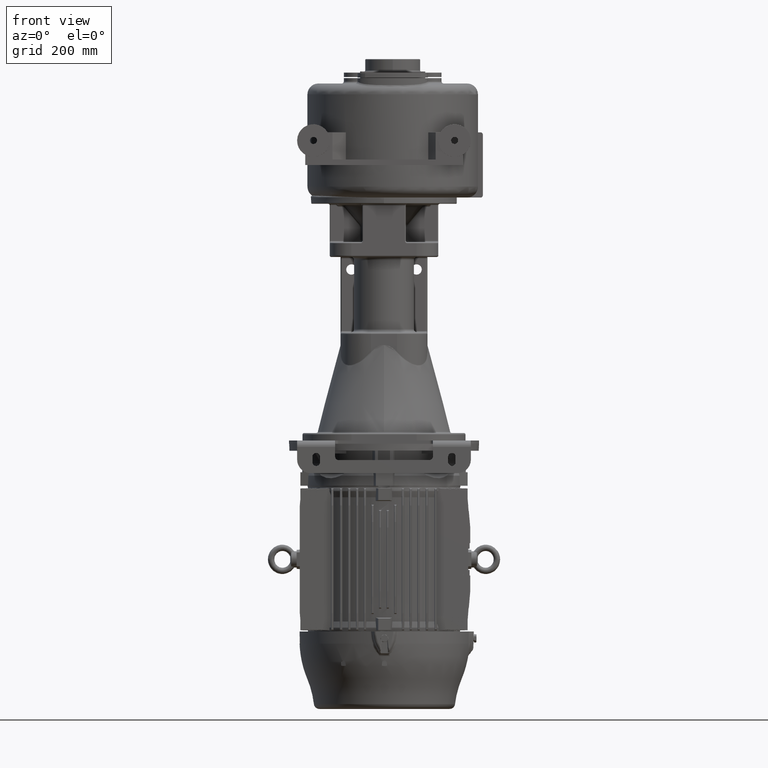
[diagram: clean part render]
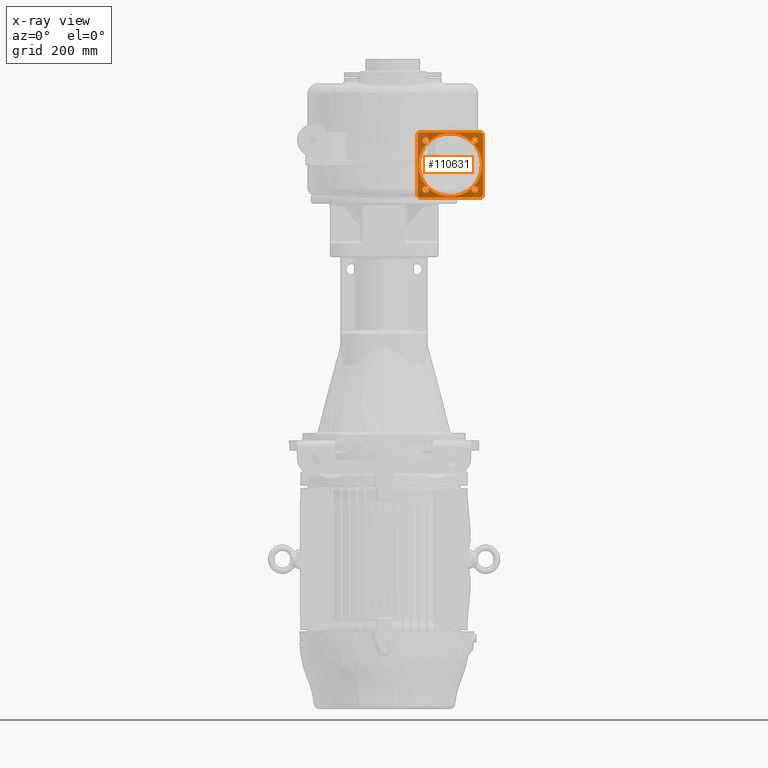
[diagram: x-ray — body ghosted, one internal face saturated and labeled with its STEP entity id]
A machine part, front view, then the same camera in x-ray: the body is ghosted and one INTERNAL B-rep face — a face not visible from any outside direction — is saturated and labeled: STEP entity #110631.
In plain terms, the highlighted planar face has unit normal (0, -1, 0).
Its self-contained STEP definition (entity closure, byte-faithful):
#110088=CARTESIAN_POINT('',(7.674516600406E1,3.855E2,-9.025483399594E1));
#110089=DIRECTION('',(0.E0,-1.E0,0.E0));
#110090=DIRECTION('',(1.E0,0.E0,0.E0));
#110091=AXIS2_PLACEMENT_3D('',#110088,#110089,#110090);
#110093=CARTESIAN_POINT('',(1.22E2,3.855E2,-4.5E1));
#110094=DIRECTION('',(0.E0,1.E0,0.E0));
#110095=DIRECTION('',(7.071067811865E-1,0.E0,-7.071067811865E-1));
#110096=AXIS2_PLACEMENT_3D('',#110093,#110094,#110095);
#110098=CARTESIAN_POINT('',(1.672548339959E2,3.855E2,-9.025483399594E1));
#110099=DIRECTION('',(0.E0,-1.E0,0.E0));
#110100=DIRECTION('',(-7.071067811865E-1,0.E0,7.071067811865E-1));
#110101=AXIS2_PLACEMENT_3D('',#110098,#110099,#110100);
#110103=CARTESIAN_POINT('',(1.672548339959E2,3.855E2,-9.025483399594E1));
#110104=DIRECTION('',(0.E0,-1.E0,0.E0));
#110105=DIRECTION('',(0.E0,0.E0,-1.E0));
#110106=AXIS2_PLACEMENT_3D('',#110103,#110104,#110105);
#110108=CARTESIAN_POINT('',(1.672548339959E2,3.855E2,-9.025483399594E1));
#110109=DIRECTION('',(0.E0,-1.E0,0.E0));
#110110=DIRECTION('',(0.E0,0.E0,1.E0));
#110111=AXIS2_PLACEMENT_3D('',#110108,#110109,#110110);
#110113=CARTESIAN_POINT('',(1.22E2,3.855E2,-4.5E1));
#110114=DIRECTION('',(0.E0,1.E0,0.E0));
#110115=DIRECTION('',(1.E0,0.E0,0.E0));
#110116=AXIS2_PLACEMENT_3D('',#110113,#110114,#110115);
#110118=CARTESIAN_POINT('',(1.22E2,3.855E2,-4.5E1));
#110119=DIRECTION('',(0.E0,1.E0,0.E0));
#110120=DIRECTION('',(7.071067811865E-1,0.E0,7.071067811865E-1));
#110121=AXIS2_PLACEMENT_3D('',#110118,#110119,#110120);
#110123=CARTESIAN_POINT('',(1.672548339959E2,3.855E2,2.548339959390E-1));
#110124=DIRECTION('',(0.E0,-1.E0,0.E0));
#110125=DIRECTION('',(-7.071067811865E-1,0.E0,-7.071067811865E-1));
#110126=AXIS2_PLACEMENT_3D('',#110123,#110124,#110125);
#110128=CARTESIAN_POINT('',(1.672548339959E2,3.855E2,2.548339959390E-1));
#110129=DIRECTION('',(0.E0,-1.E0,0.E0));
#110130=DIRECTION('',(1.E0,0.E0,0.E0));
#110131=AXIS2_PLACEMENT_3D('',#110128,#110129,#110130);
#110133=CARTESIAN_POINT('',(1.672548339959E2,3.855E2,2.548339959390E-1));
#110134=DIRECTION('',(0.E0,-1.E0,0.E0));
#110135=DIRECTION('',(-1.E0,0.E0,0.E0));
#110136=AXIS2_PLACEMENT_3D('',#110133,#110134,#110135);
#110138=CARTESIAN_POINT('',(1.22E2,3.855E2,-4.5E1));
#110139=DIRECTION('',(0.E0,1.E0,0.E0));
#110140=DIRECTION('',(-7.071067811865E-1,0.E0,7.071067811865E-1));
#110141=AXIS2_PLACEMENT_3D('',#110138,#110139,#110140);
#110143=CARTESIAN_POINT('',(7.674516600406E1,3.855E2,2.548339959390E-1));
#110144=DIRECTION('',(0.E0,-1.E0,0.E0));
#110145=DIRECTION('',(7.071067811865E-1,0.E0,-7.071067811865E-1));
#110146=AXIS2_PLACEMENT_3D('',#110143,#110144,#110145);
#110148=CARTESIAN_POINT('',(7.674516600406E1,3.855E2,2.548339959390E-1));
#110149=DIRECTION('',(0.E0,-1.E0,0.E0));
#110150=DIRECTION('',(0.E0,0.E0,1.E0));
#110151=AXIS2_PLACEMENT_3D('',#110148,#110149,#110150);
#110153=CARTESIAN_POINT('',(7.674516600406E1,3.855E2,2.548339959390E-1));
#110154=DIRECTION('',(0.E0,-1.E0,0.E0));
#110155=DIRECTION('',(0.E0,0.E0,-1.E0));
#110156=AXIS2_PLACEMENT_3D('',#110153,#110154,#110155);
#110158=CARTESIAN_POINT('',(1.22E2,3.855E2,-4.5E1));
#110159=DIRECTION('',(0.E0,1.E0,0.E0));
#110160=DIRECTION('',(-1.E0,0.E0,0.E0));
#110161=AXIS2_PLACEMENT_3D('',#110158,#110159,#110160);
#110163=CARTESIAN_POINT('',(1.22E2,3.855E2,-4.5E1));
#110164=DIRECTION('',(0.E0,1.E0,0.E0));
#110165=DIRECTION('',(-7.071067811865E-1,0.E0,-7.071067811865E-1));
#110166=AXIS2_PLACEMENT_3D('',#110163,#110164,#110165);
#110168=CARTESIAN_POINT('',(7.674516600406E1,3.855E2,-9.025483399594E1));
#110169=DIRECTION('',(0.E0,-1.E0,0.E0));
#110170=DIRECTION('',(7.071067811865E-1,0.E0,7.071067811865E-1));
#110171=AXIS2_PLACEMENT_3D('',#110168,#110169,#110170);
#110173=CARTESIAN_POINT('',(7.674516600406E1,3.855E2,-9.025483399594E1));
#110174=DIRECTION('',(0.E0,-1.E0,0.E0));
#110175=DIRECTION('',(-1.E0,0.E0,0.E0));
#110176=AXIS2_PLACEMENT_3D('',#110173,#110174,#110175);
#110178=DIRECTION('',(1.E0,0.E0,0.E0));
#110179=VECTOR('',#110178,1.12E2);
#110180=CARTESIAN_POINT('',(6.6E1,3.855E2,1.5E1));
#110181=LINE('',#110180,#110179);
#110194=CARTESIAN_POINT('',(6.6E1,3.855E2,1.1E1));
#110195=DIRECTION('',(0.E0,-1.E0,0.E0));
#110196=DIRECTION('',(0.E0,0.E0,1.E0));
#110197=AXIS2_PLACEMENT_3D('',#110194,#110195,#110196);
#110204=DIRECTION('',(0.E0,0.E0,1.E0));
#110205=VECTOR('',#110204,1.12E2);
#110206=CARTESIAN_POINT('',(6.2E1,3.855E2,-1.01E2));
#110207=LINE('',#110206,#110205);
#110220=CARTESIAN_POINT('',(6.6E1,3.855E2,-1.01E2));
#110221=DIRECTION('',(0.E0,-1.E0,0.E0));
#110222=DIRECTION('',(-1.E0,0.E0,0.E0));
#110223=AXIS2_PLACEMENT_3D('',#110220,#110221,#110222);
#110230=DIRECTION('',(-1.E0,0.E0,0.E0));
#110231=VECTOR('',#110230,1.12E2);
#110232=CARTESIAN_POINT('',(1.78E2,3.855E2,-1.05E2));
#110233=LINE('',#110232,#110231);
#110246=CARTESIAN_POINT('',(1.78E2,3.855E2,-1.01E2));
#110247=DIRECTION('',(0.E0,-1.E0,0.E0));
#110248=DIRECTION('',(0.E0,0.E0,-1.E0));
#110249=AXIS2_PLACEMENT_3D('',#110246,#110247,#110248);
#110256=DIRECTION('',(0.E0,0.E0,-1.E0));
#110257=VECTOR('',#110256,1.12E2);
#110258=CARTESIAN_POINT('',(1.82E2,3.855E2,1.1E1));
#110259=LINE('',#110258,#110257);
#110272=CARTESIAN_POINT('',(1.78E2,3.855E2,1.1E1));
#110273=DIRECTION('',(0.E0,-1.E0,0.E0));
#110274=DIRECTION('',(1.E0,0.E0,0.E0));
#110275=AXIS2_PLACEMENT_3D('',#110272,#110273,#110274);
#110498=CARTESIAN_POINT('',(6.6E1,3.855E2,1.5E1));
#110499=CARTESIAN_POINT('',(1.78E2,3.855E2,1.5E1));
#110500=VERTEX_POINT('',#110498);
#110501=VERTEX_POINT('',#110499);
#110502=CARTESIAN_POINT('',(1.82E2,3.855E2,1.1E1));
#110503=CARTESIAN_POINT('',(1.82E2,3.855E2,-1.01E2));
#110504=VERTEX_POINT('',#110502);
#110505=VERTEX_POINT('',#110503);
#110506=CARTESIAN_POINT('',(1.78E2,3.855E2,-1.05E2));
#110507=CARTESIAN_POINT('',(6.6E1,3.855E2,-1.05E2));
#110508=VERTEX_POINT('',#110506);
#110509=VERTEX_POINT('',#110507);
#110510=CARTESIAN_POINT('',(6.2E1,3.855E2,-1.01E2));
#110511=CARTESIAN_POINT('',(6.2E1,3.855E2,1.1E1));
#110512=VERTEX_POINT('',#110510);
#110513=VERTEX_POINT('',#110511);
#110514=CARTESIAN_POINT('',(6.375E1,3.855E2,-4.5E1));
#110515=VERTEX_POINT('',#110514);
#110516=CARTESIAN_POINT('',(1.8025E2,3.855E2,-4.5E1));
#110517=VERTEX_POINT('',#110516);
#110534=CARTESIAN_POINT('',(7.674516600406E1,3.855E2,-5.495166004061E0));
#110535=CARTESIAN_POINT('',(8.081102999588E1,3.855E2,-3.811029995884E0));
#110536=VERTEX_POINT('',#110534);
#110537=VERTEX_POINT('',#110535);
#110538=CARTESIAN_POINT('',(7.674516600406E1,3.855E2,6.004833995939E0));
#110539=VERTEX_POINT('',#110538);
#110544=CARTESIAN_POINT('',(1.615048339959E2,3.855E2,2.548339959390E-1));
#110545=CARTESIAN_POINT('',(1.631889700041E2,3.855E2,-3.811029995884E0));
#110546=VERTEX_POINT('',#110544);
#110547=VERTEX_POINT('',#110545);
#110548=CARTESIAN_POINT('',(1.730048339959E2,3.855E2,2.548339959390E-1));
#110549=VERTEX_POINT('',#110548);
#110554=CARTESIAN_POINT('',(1.672548339959E2,3.855E2,-8.450483399594E1));
#110555=CARTESIAN_POINT('',(1.631889700041E2,3.855E2,-8.618897000412E1));
#110556=VERTEX_POINT('',#110554);
#110557=VERTEX_POINT('',#110555);
#110558=CARTESIAN_POINT('',(1.672548339959E2,3.855E2,-9.600483399594E1));
#110559=VERTEX_POINT('',#110558);
#110564=CARTESIAN_POINT('',(8.249516600406E1,3.855E2,-9.025483399594E1));
#110565=CARTESIAN_POINT('',(8.081102999588E1,3.855E2,-8.618897000412E1));
#110566=VERTEX_POINT('',#110564);
#110567=VERTEX_POINT('',#110565);
#110568=CARTESIAN_POINT('',(7.099516600406E1,3.855E2,-9.025483399594E1));
#110569=VERTEX_POINT('',#110568);
#110570=CARTESIAN_POINT('',(1.22E2,3.855E2,-4.5E1));
#110571=DIRECTION('',(0.E0,-1.E0,0.E0));
#110572=DIRECTION('',(-1.E0,0.E0,0.E0));
#110573=AXIS2_PLACEMENT_3D('',#110570,#110571,#110572);
#110574=PLANE('',#110573);
#110576=ORIENTED_EDGE('',*,*,#110575,.T.);
#110578=ORIENTED_EDGE('',*,*,#110577,.F.);
#110580=ORIENTED_EDGE('',*,*,#110579,.T.);
#110582=ORIENTED_EDGE('',*,*,#110581,.F.);
#110584=ORIENTED_EDGE('',*,*,#110583,.T.);
#110586=ORIENTED_EDGE('',*,*,#110585,.F.);
#110588=ORIENTED_EDGE('',*,*,#110587,.T.);
#110590=ORIENTED_EDGE('',*,*,#110589,.F.);
#110591=EDGE_LOOP('',(#110576,#110578,#110580,#110582,#110584,#110586,#110588,
#110590));
#110592=FACE_OUTER_BOUND('',#110591,.F.);
#110594=ORIENTED_EDGE('',*,*,#110593,.T.);
#110596=ORIENTED_EDGE('',*,*,#110595,.F.);
#110598=ORIENTED_EDGE('',*,*,#110597,.T.);
#110600=ORIENTED_EDGE('',*,*,#110599,.T.);
#110602=ORIENTED_EDGE('',*,*,#110601,.T.);
#110604=ORIENTED_EDGE('',*,*,#110603,.F.);
#110606=ORIENTED_EDGE('',*,*,#110605,.F.);
#110608=ORIENTED_EDGE('',*,*,#110607,.T.);
#110610=ORIENTED_EDGE('',*,*,#110609,.T.);
#110612=ORIENTED_EDGE('',*,*,#110611,.T.);
#110614=ORIENTED_EDGE('',*,*,#110613,.F.);
#110616=ORIENTED_EDGE('',*,*,#110615,.T.);
#110618=ORIENTED_EDGE('',*,*,#110617,.T.);
#110620=ORIENTED_EDGE('',*,*,#110619,.T.);
#110622=ORIENTED_EDGE('',*,*,#110621,.F.);
#110624=ORIENTED_EDGE('',*,*,#110623,.F.);
#110626=ORIENTED_EDGE('',*,*,#110625,.T.);
#110628=ORIENTED_EDGE('',*,*,#110627,.T.);
#110629=EDGE_LOOP('',(#110594,#110596,#110598,#110600,#110602,#110604,#110606,
#110608,#110610,#110612,#110614,#110616,#110618,#110620,#110622,#110624,#110626,
#110628));
#110630=FACE_BOUND('',#110629,.F.);
#110631=ADVANCED_FACE('',(#110592,#110630),#110574,.T.);
#110092=CIRCLE('',#110091,5.75E0);
#110097=CIRCLE('',#110096,5.825E1);
#110102=CIRCLE('',#110101,5.75E0);
#110107=CIRCLE('',#110106,5.75E0);
#110112=CIRCLE('',#110111,5.75E0);
#110117=CIRCLE('',#110116,5.825E1);
#110122=CIRCLE('',#110121,5.825E1);
#110127=CIRCLE('',#110126,5.75E0);
#110132=CIRCLE('',#110131,5.75E0);
#110137=CIRCLE('',#110136,5.75E0);
#110142=CIRCLE('',#110141,5.825E1);
#110147=CIRCLE('',#110146,5.75E0);
#110152=CIRCLE('',#110151,5.75E0);
#110157=CIRCLE('',#110156,5.75E0);
#110162=CIRCLE('',#110161,5.825E1);
#110167=CIRCLE('',#110166,5.825E1);
#110172=CIRCLE('',#110171,5.75E0);
#110177=CIRCLE('',#110176,5.75E0);
#110198=CIRCLE('',#110197,4.E0);
#110224=CIRCLE('',#110223,4.E0);
#110250=CIRCLE('',#110249,4.E0);
#110276=CIRCLE('',#110275,4.E0);
#110575=EDGE_CURVE('',#110500,#110501,#110181,.T.);
#110577=EDGE_CURVE('',#110504,#110501,#110276,.T.);
#110579=EDGE_CURVE('',#110504,#110505,#110259,.T.);
#110581=EDGE_CURVE('',#110508,#110505,#110250,.T.);
#110583=EDGE_CURVE('',#110508,#110509,#110233,.T.);
#110585=EDGE_CURVE('',#110512,#110509,#110224,.T.);
#110587=EDGE_CURVE('',#110512,#110513,#110207,.T.);
#110589=EDGE_CURVE('',#110500,#110513,#110198,.T.);
#110593=EDGE_CURVE('',#110566,#110567,#110092,.T.);
#110595=EDGE_CURVE('',#110557,#110567,#110097,.T.);
#110597=EDGE_CURVE('',#110557,#110559,#110102,.T.);
#110599=EDGE_CURVE('',#110559,#110556,#110107,.T.);
#110601=EDGE_CURVE('',#110556,#110557,#110112,.T.);
#110603=EDGE_CURVE('',#110517,#110557,#110117,.T.);
#110605=EDGE_CURVE('',#110547,#110517,#110122,.T.);
#110607=EDGE_CURVE('',#110547,#110549,#110127,.T.);
#110609=EDGE_CURVE('',#110549,#110546,#110132,.T.);
#110611=EDGE_CURVE('',#110546,#110547,#110137,.T.);
#110613=EDGE_CURVE('',#110537,#110547,#110142,.T.);
#110615=EDGE_CURVE('',#110537,#110539,#110147,.T.);
#110617=EDGE_CURVE('',#110539,#110536,#110152,.T.);
#110619=EDGE_CURVE('',#110536,#110537,#110157,.T.);
#110621=EDGE_CURVE('',#110515,#110537,#110162,.T.);
#110623=EDGE_CURVE('',#110567,#110515,#110167,.T.);
#110625=EDGE_CURVE('',#110567,#110569,#110172,.T.);
#110627=EDGE_CURVE('',#110569,#110566,#110177,.T.);